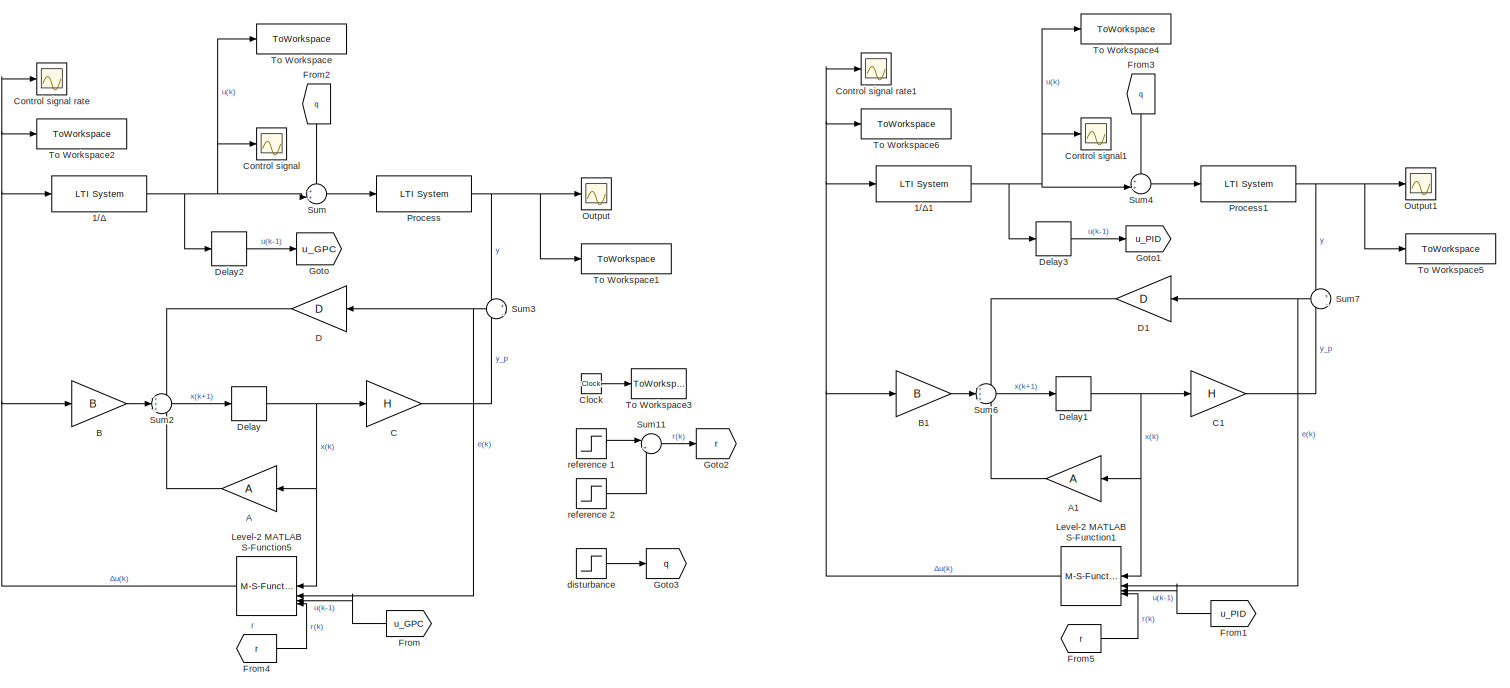
[diagram: root canvas - part 1/2, full width, middle band]
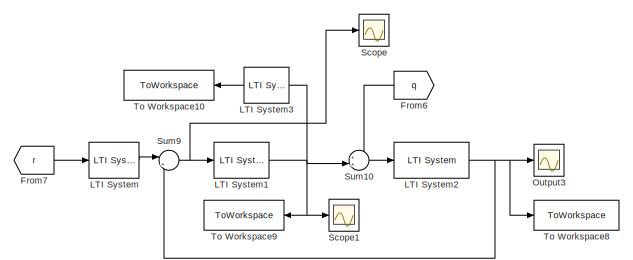
[diagram: root canvas - part 2/2, bottom center region]
MODEL slx_0294120f02e2
KIND model
CONFIG AbsTol = auto
CONFIG EnableMultiTasking = off
CONFIG FixedStep = auto
CONFIG MaxStep = auto
CONFIG MinStep = auto
CONFIG RelTol = 1e-3
CONFIG SampleTimeConstraint = Unconstrained
CONFIG SolverName = VariableStepAuto
CONFIG StartTime = 0.0
CONFIG StopTime = Tsim
BLOCK [Reference] 1//Δ  REF=cstblocks/LTI System
  SourceBlock = cstblocks/LTI System
  SourceType = LTI Block
BLOCK [Reference] 1//Δ1  REF=cstblocks/LTI System
  SourceBlock = cstblocks/LTI System
  SourceType = LTI Block
BLOCK [Gain] A
  Gain = A
  Multiplication = Matrix(K*u)
BLOCK [Gain] A1
  Gain = A
  Multiplication = Matrix(K*u)
BLOCK [Gain] B
  Gain = B
  Multiplication = Matrix(K*u)
BLOCK [Gain] B1
  Gain = B
  Multiplication = Matrix(K*u)
BLOCK [Gain] C
  Gain = H
  Multiplication = Matrix(K*u)
BLOCK [Gain] C1
  Gain = H
  Multiplication = Matrix(K*u)
BLOCK [Clock] Clock
BLOCK [Scope] Control signal
  Floating = off
  NumInputPorts = 1
  ScopeSpecificationString = Simulink.scopes.TimeScopeBlockCfg('CurrentConfiguration', extmgr.ConfigurationSet(extmgr.Configuration('Core','General UI',true),extmgr.Configuration('Core','Source UI',true),extmgr.Configuration('Sources','WiredSimulink',true,'DataLoggingVariableName','ScopeData2'),extmgr.Configuration('Visuals','Time Domain',true,'SerializedDisplays',{struct('MinYLimReal','-0.11015','MaxYLimReal','0.99139','YLab...<+1407ch>
BLOCK [Scope] Control signal rate
  Floating = off
  NumInputPorts = 1
  ScopeSpecificationString = Simulink.scopes.TimeScopeBlockCfg('CurrentConfiguration', extmgr.ConfigurationSet(extmgr.Configuration('Core','General UI',true),extmgr.Configuration('Core','Source UI',true),extmgr.Configuration('Sources','WiredSimulink',true,'DataLoggingVariableName','ScopeData4'),extmgr.Configuration('Visuals','Time Domain',true,'SerializedDisplays',{struct('MinYLimReal','-0.62439','MaxYLimReal','0.62493','YLab...<+1393ch>
BLOCK [Scope] Control signal rate1
  Floating = off
  NumInputPorts = 1
  ScopeSpecificationString = Simulink.scopes.TimeScopeBlockCfg('CurrentConfiguration', extmgr.ConfigurationSet(extmgr.Configuration('Core','General UI',true),extmgr.Configuration('Core','Source UI',true),extmgr.Configuration('Sources','WiredSimulink',true),extmgr.Configuration('Visuals','Time Domain',true,'SerializedDisplays',{struct('MinYLimReal','-0.62439','MaxYLimReal','0.62493','YLabelReal','','MinYLimMag','0.00000','MaxY...<+1354ch>
BLOCK [Scope] Control signal1
  Floating = off
  NumInputPorts = 1
  ScopeSpecificationString = Simulink.scopes.TimeScopeBlockCfg('CurrentConfiguration', extmgr.ConfigurationSet(extmgr.Configuration('Core','General UI',true),extmgr.Configuration('Core','Source UI',true),extmgr.Configuration('Sources','WiredSimulink',true,'DataLoggingVariableName','ScopeData5'),extmgr.Configuration('Visuals','Time Domain',true,'SerializedDisplays',{struct('MinYLimReal','-0.11015','MaxYLimReal','0.99139','YLab...<+1407ch>
BLOCK [Gain] D
  Gain = D
  Multiplication = Matrix(K*u)
BLOCK [Gain] D1
  Gain = D
  Multiplication = Matrix(K*u)
BLOCK [Delay] Delay
  DelayLength = 1
  InputPortMap = u0
  SampleTime = Ts
BLOCK [Delay] Delay1
  DelayLength = 1
  InputPortMap = u0
  SampleTime = Ts
BLOCK [Delay] Delay2
  DelayLength = 1
  InputPortMap = u0
  SampleTime = Ts
BLOCK [Delay] Delay3
  DelayLength = 1
  InputPortMap = u0
  SampleTime = Ts
BLOCK [From] From
  GotoTag = u_GPC
  NameLocation = top
BLOCK [From] From1
  GotoTag = u_PID
  NameLocation = top
BLOCK [From] From2
  GotoTag = q
  NameLocation = left
BLOCK [From] From3
  GotoTag = q
  NameLocation = left
BLOCK [From] From4
  GotoTag = r
BLOCK [From] From5
  GotoTag = r
BLOCK [From] From6
  GotoTag = q
  NameLocation = top
BLOCK [From] From7
  GotoTag = r
BLOCK [Goto] Goto
  GotoTag = u_GPC
BLOCK [Goto] Goto1
  GotoTag = u_PID
BLOCK [Goto] Goto2
  GotoTag = r
BLOCK [Goto] Goto3
  GotoTag = q
BLOCK [Reference] LTI System  REF=cstblocks/LTI System
  SourceBlock = cstblocks/LTI System
  SourceType = LTI Block
BLOCK [Reference] LTI System1  REF=cstblocks/LTI System
  SourceBlock = cstblocks/LTI System
  SourceType = LTI Block
BLOCK [Reference] LTI System2  REF=cstblocks/LTI System
  SourceBlock = cstblocks/LTI System
  SourceType = LTI Block
BLOCK [Reference] LTI System3  REF=cstblocks/LTI System
  SourceBlock = cstblocks/LTI System
  SourceType = LTI Block
BLOCK [M-S-Function] Level-2 MATLAB S-Function1
  FunctionName = PID_GPC
  NameLocation = top
  Parameters = F,E,G,y_max,y_min,u_max,u_min,du_max,du_min,Ts,N,Nu,Q,lambda,lambda_e,A
BLOCK [M-S-Function] Level-2 MATLAB S-Function5
  FunctionName = QPsolver
  NameLocation = top
  Parameters = F,E,G,y_max,y_min,u_max,u_min,du_max,du_min,Ts,N,Nu,Q,lambda,lambda_e,A
BLOCK [Scope] Output
  Floating = off
  NumInputPorts = 1
  ScopeSpecificationString = Simulink.scopes.TimeScopeBlockCfg('CurrentConfiguration', extmgr.ConfigurationSet(extmgr.Configuration('Core','General UI',true),extmgr.Configuration('Core','Source UI',true),extmgr.Configuration('Sources','WiredSimulink',true,'DataLoggingVariableName','ScopeData1'),extmgr.Configuration('Visuals','Time Domain',true,'SerializedDisplays',{struct('MinYLimReal','-0.09082','MaxYLimReal','0.78866','YLab...<+1433ch>
BLOCK [Scope] Output1
  Floating = off
  NumInputPorts = 1
  ScopeSpecificationString = Simulink.scopes.TimeScopeBlockCfg('CurrentConfiguration', extmgr.ConfigurationSet(extmgr.Configuration('Core','General UI',true),extmgr.Configuration('Core','Source UI',true),extmgr.Configuration('Sources','WiredSimulink',true,'DataLoggingVariableName','ScopeData6'),extmgr.Configuration('Visuals','Time Domain',true,'SerializedDisplays',{struct('MinYLimReal','-0.09082','MaxYLimReal','0.78866','YLab...<+1433ch>
BLOCK [Scope] Output3
  Floating = off
  NumInputPorts = 1
  ScopeSpecificationString = Simulink.scopes.TimeScopeBlockCfg('CurrentConfiguration', extmgr.ConfigurationSet(extmgr.Configuration('Core','General UI',true),extmgr.Configuration('Core','Source UI',true),extmgr.Configuration('Sources','WiredSimulink',true,'DataLoggingVariableName','ScopeData8'),extmgr.Configuration('Visuals','Time Domain',true,'SerializedDisplays',{struct('MinYLimReal','-0.14279','MaxYLimReal','0.89017','YLab...<+1399ch>
BLOCK [Reference] Process  REF=cstblocks/LTI System
  SourceBlock = cstblocks/LTI System
  SourceType = LTI Block
BLOCK [Reference] Process1  REF=cstblocks/LTI System
  SourceBlock = cstblocks/LTI System
  SourceType = LTI Block
BLOCK [Scope] Scope
  Floating = off
  NumInputPorts = 1
  ScopeSpecificationString = Simulink.scopes.TimeScopeBlockCfg('CurrentConfiguration', extmgr.ConfigurationSet(extmgr.Configuration('Core','General UI',true),extmgr.Configuration('Core','Source UI',true),extmgr.Configuration('Sources','WiredSimulink',true,'DataLoggingVariableName','ScopeData3'),extmgr.Configuration('Visuals','Time Domain',true,'SerializedDisplays',{struct('MinYLimReal','-0.05576','MaxYLimReal','0.08537','YLab...<+1393ch>
BLOCK [Scope] Scope1
  Floating = off
  NumInputPorts = 1
  ScopeSpecificationString = Simulink.scopes.TimeScopeBlockCfg('CurrentConfiguration', extmgr.ConfigurationSet(extmgr.Configuration('Core','General UI',true),extmgr.Configuration('Core','Source UI',true),extmgr.Configuration('Sources','WiredSimulink',true,'DataLoggingVariableName','ScopeData7'),extmgr.Configuration('Visuals','Time Domain',true,'SerializedDisplays',{struct('MinYLimReal','-0.88848','MaxYLimReal','1.18448','YLab...<+1399ch>
BLOCK [Sum] Sum
  Inputs = ++|
BLOCK [Sum] Sum10
  Inputs = ++|
BLOCK [Sum] Sum11
  Inputs = |++
BLOCK [Sum] Sum2
  Inputs = +++
BLOCK [Sum] Sum3
  Inputs = +|-
BLOCK [Sum] Sum4
  Inputs = ++|
BLOCK [Sum] Sum6
  Inputs = +++
BLOCK [Sum] Sum7
  Inputs = +|-
BLOCK [Sum] Sum9
  Inputs = |+-
BLOCK [ToWorkspace] To Workspace
  FixptAsFi = on
  MaxDataPoints = inf
  SampleTime = Ts
  Save2DSignal = 2-D array (concatenate along first dimension)
  VariableName = u_GPC
BLOCK [ToWorkspace] To Workspace1
  FixptAsFi = on
  MaxDataPoints = inf
  SampleTime = Ts
  Save2DSignal = 2-D array (concatenate along first dimension)
  VariableName = y_GPC
BLOCK [ToWorkspace] To Workspace10
  FixptAsFi = on
  MaxDataPoints = inf
  SampleTime = Ts
  VariableName = du_PIDmapping
BLOCK [ToWorkspace] To Workspace2
  FixptAsFi = on
  MaxDataPoints = inf
  NameLocation = top
  SampleTime = Ts
  Save2DSignal = 2-D array (concatenate along first dimension)
  VariableName = du_GPC
BLOCK [ToWorkspace] To Workspace3
  FixptAsFi = on
  MaxDataPoints = inf
  SampleTime = Ts
  Save2DSignal = 2-D array (concatenate along first dimension)
  VariableName = t
BLOCK [ToWorkspace] To Workspace4
  FixptAsFi = on
  MaxDataPoints = inf
  SampleTime = Ts
  Save2DSignal = 2-D array (concatenate along first dimension)
  VariableName = u_PID
BLOCK [ToWorkspace] To Workspace5
  FixptAsFi = on
  MaxDataPoints = inf
  SampleTime = Ts
  Save2DSignal = 2-D array (concatenate along first dimension)
  VariableName = y_PID
BLOCK [ToWorkspace] To Workspace6
  FixptAsFi = on
  MaxDataPoints = inf
  NameLocation = top
  SampleTime = Ts
  Save2DSignal = 2-D array (concatenate along first dimension)
  VariableName = du_PID
BLOCK [ToWorkspace] To Workspace8
  FixptAsFi = on
  MaxDataPoints = inf
  SampleTime = Ts
  VariableName = y_PIDmapping
BLOCK [ToWorkspace] To Workspace9
  FixptAsFi = on
  MaxDataPoints = inf
  SampleTime = Ts
  VariableName = u_PIDmapping
BLOCK [Step] disturbance
  After = pert
  SampleTime = Ts
  Time = Tpert*Ts
BLOCK [Step] reference 1
  After = r1
  SampleTime = Ts
  Time = Tr1*Ts
BLOCK [Step] reference 2
  After = r2
  SampleTime = Ts
  Time = Tr2*Ts
ANNOTATION (root): r
NET 1//Δ1:1 -> Control signal1:1, Delay3:1, Sum4:2, To Workspace4:1
NET 1//Δ:1 -> Control signal:1, Delay2:1, Sum:2, To Workspace:1
LINE A1:1 -> Sum6:3
LINE A:1 -> Sum2:3
LINE B1:1 -> Sum6:2
LINE B:1 -> Sum2:2
LINE C1:1 -> Sum7:2
LINE C:1 -> Sum3:2
LINE Clock:1 -> To Workspace3:1
LINE D1:1 -> Sum6:1
LINE D:1 -> Sum2:1
NET Delay1:1 -> A1:1, C1:1, Level-2 MATLAB S-Function1:1
LINE Delay2:1 -> Goto:1
LINE Delay3:1 -> Goto1:1
NET Delay:1 -> A:1, C:1, Level-2 MATLAB S-Function5:1
LINE From1:1 -> Level-2 MATLAB S-Function1:3
LINE From2:1 -> Sum:1
LINE From3:1 -> Sum4:1
LINE From4:1 -> Level-2 MATLAB S-Function5:4
LINE From5:1 -> Level-2 MATLAB S-Function1:4
LINE From6:1 -> Sum10:1
LINE From7:1 -> LTI System:1
LINE From:1 -> Level-2 MATLAB S-Function5:3
NET LTI System1:1 -> LTI System3:1, Scope1:1, Sum10:2, To Workspace9:1
NET LTI System2:1 -> Output3:1, Sum9:2, To Workspace8:1
LINE LTI System3:1 -> To Workspace10:1
LINE LTI System:1 -> Sum9:1
NET Level-2 MATLAB S-Function1:1 -> 1//Δ1:1, B1:1, Control signal rate1:1, To Workspace6:1
NET Level-2 MATLAB S-Function5:1 -> 1//Δ:1, B:1, Control signal rate:1, To Workspace2:1
NET Process1:1 -> Output1:1, Sum7:1, To Workspace5:1
NET Process:1 -> Output:1, Sum3:1, To Workspace1:1
LINE Sum10:1 -> LTI System2:1
LINE Sum11:1 -> Goto2:1
LINE Sum2:1 -> Delay:1
NET Sum3:1 -> D:1, Level-2 MATLAB S-Function5:2
LINE Sum4:1 -> Process1:1
LINE Sum6:1 -> Delay1:1
NET Sum7:1 -> D1:1, Level-2 MATLAB S-Function1:2
NET Sum9:1 -> LTI System1:1, Scope:1
LINE Sum:1 -> Process:1
LINE disturbance:1 -> Goto3:1
LINE reference 1:1 -> Sum11:1
LINE reference 2:1 -> Sum11:2
note: NET lines group one-source signal fan-out (src -> all destinations, sorted); 1:1 wires keep LINE
